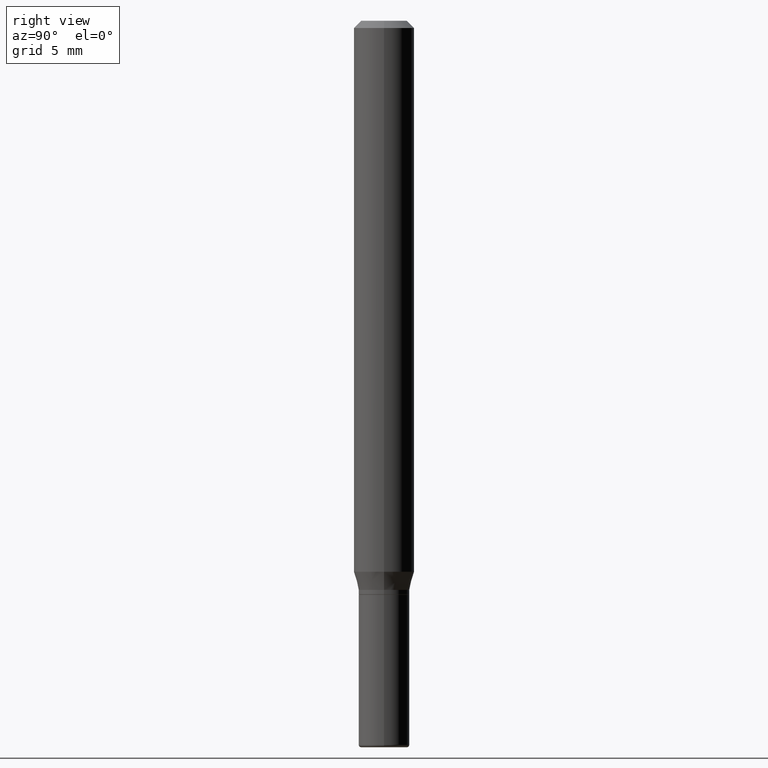
[diagram: clean part render]
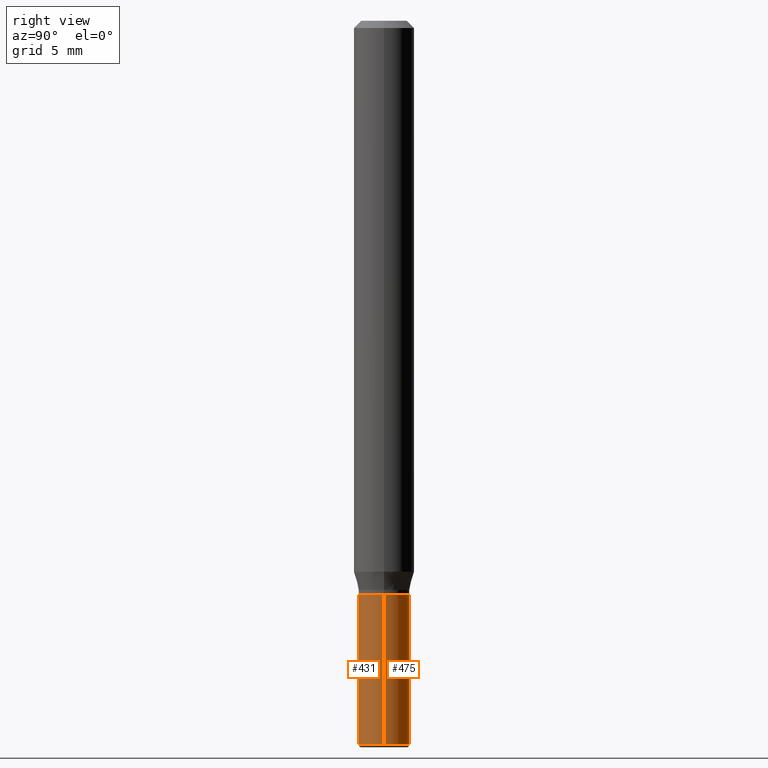
[diagram: same view with one multi-face feature highlighted, each face labeled with its STEP entity id]
A machine part, right view. The highlighted faces form ONE feature: a constant-radius fillet chain: 2 tangent blend faces with common blend radius 1.3335 mm. The faces share edges in the B-rep.
Their STEP definitions:
[1] entity #431 (Cylinder):
#2 = EDGE_LOOP ( 'NONE', ( #430, #240, #84, #311 ) ) ;
#15 = DIRECTION ( 'NONE',  ( -2.445468806185136877E-29, 3.491481338843145188E-15, 1.000000000000000000 ) ) ;
#18 = DIRECTION ( 'NONE',  ( -2.445468806185136877E-29, 3.491481338843145188E-15, 1.000000000000000000 ) ) ;
#21 = DIRECTION ( 'NONE',  ( -2.445468806185136597E-29, 3.491481338843145583E-15, 1.000000000000000000 ) ) ;
#34 = AXIS2_PLACEMENT_3D ( 'NONE', #250, #216, #174 ) ;
#42 = VERTEX_POINT ( 'NONE', #236 ) ;
#54 = CARTESIAN_POINT ( 'NONE',  ( 0.000000000000000000, 0.000000000000000000, 0.000000000000000000 ) ) ;
#84 = ORIENTED_EDGE ( 'NONE', *, *, #449, .T. ) ;
#93 = CARTESIAN_POINT ( 'NONE',  ( 0.05250000000000008826, -3.666055405785296038E-16, 2.559992807292870916E-30 ) ) ;
#143 = EDGE_CURVE ( 'NONE', #409, #310, #315, .T. ) ;
#174 = DIRECTION ( 'NONE',  ( 1.000000000000000000, -6.982962677686263555E-15, 0.000000000000000000 ) ) ;
#205 = EDGE_CURVE ( 'NONE', #352, #409, #215, .T. ) ;
#207 = LINE ( 'NONE', #93, #401 ) ;
#215 = LINE ( 'NONE', #368, #246 ) ;
#216 = DIRECTION ( 'NONE',  ( -2.445468806185136597E-29, 3.491481338843145583E-15, 1.000000000000000000 ) ) ;
#227 = CARTESIAN_POINT ( 'NONE',  ( -0.05250000000000017153, -4.305550057775760834E-15, -1.495000000000000107 ) ) ;
#236 = CARTESIAN_POINT ( 'NONE',  ( 0.05250000000000017153, -5.586370142149033090E-15, -1.495000000000000107 ) ) ;
#237 = CARTESIAN_POINT ( 'NONE',  ( -0.05249999999999999806, -4.305550057775762412E-15, -1.185000000000000053 ) ) ;
#240 = ORIENTED_EDGE ( 'NONE', *, *, #467, .T. ) ;
#246 = VECTOR ( 'NONE', #18, 39.37007874015748143 ) ;
#250 = CARTESIAN_POINT ( 'NONE',  ( 3.655975865246779122E-29, -5.219764601570503141E-15, -1.495000000000000107 ) ) ;
#278 = FACE_OUTER_BOUND ( 'NONE', #2, .T. ) ;
#283 = CARTESIAN_POINT ( 'NONE',  ( 0.05249999999999999806, -4.504010927107656701E-15, -1.185000000000000053 ) ) ;
#294 = CYLINDRICAL_SURFACE ( 'NONE', #494, 0.05250000000000008826 ) ;
#295 = DIRECTION ( 'NONE',  ( 1.000000000000000000, -6.982962677686258822E-15, 0.000000000000000000 ) ) ;
#299 = CIRCLE ( 'NONE', #34, 0.05250000000000017153 ) ;
#310 = VERTEX_POINT ( 'NONE', #283 ) ;
#311 = ORIENTED_EDGE ( 'NONE', *, *, #143, .F. ) ;
#315 = CIRCLE ( 'NONE', #417, 0.05249999999999999806 ) ;
#352 = VERTEX_POINT ( 'NONE', #227 ) ;
#368 = CARTESIAN_POINT ( 'NONE',  ( -0.05250000000000008826, 3.730349362740532247E-16, -2.582440922383829865E-30 ) ) ;
#370 = DIRECTION ( 'NONE',  ( -2.445468806185136597E-29, 3.491481338843145583E-15, 1.000000000000000000 ) ) ;
#401 = VECTOR ( 'NONE', #15, 39.37007874015748143 ) ;
#409 = VERTEX_POINT ( 'NONE', #237 ) ;
#417 = AXIS2_PLACEMENT_3D ( 'NONE', #450, #21, #295 ) ;
#430 = ORIENTED_EDGE ( 'NONE', *, *, #205, .F. ) ;
#431 = ADVANCED_FACE ( 'NONE', ( #278 ), #294, .T. ) ;
#445 = DIRECTION ( 'NONE',  ( 1.000000000000000000, -6.982962677686266711E-15, 4.876176775795936353E-29 ) ) ;
#449 = EDGE_CURVE ( 'NONE', #42, #310, #207, .T. ) ;
#450 = CARTESIAN_POINT ( 'NONE',  ( 2.897880535329386822E-29, -4.137405386529127541E-15, -1.185000000000000053 ) ) ;
#467 = EDGE_CURVE ( 'NONE', #352, #42, #299, .T. ) ;
#494 = AXIS2_PLACEMENT_3D ( 'NONE', #54, #370, #445 ) ;
[2] entity #475 (Cylinder):
#15 = DIRECTION ( 'NONE',  ( -2.445468806185136877E-29, 3.491481338843145188E-15, 1.000000000000000000 ) ) ;
#18 = DIRECTION ( 'NONE',  ( -2.445468806185136877E-29, 3.491481338843145188E-15, 1.000000000000000000 ) ) ;
#19 = DIRECTION ( 'NONE',  ( 1.000000000000000000, -6.982962677686258822E-15, 0.000000000000000000 ) ) ;
#22 = FACE_OUTER_BOUND ( 'NONE', #199, .T. ) ;
#42 = VERTEX_POINT ( 'NONE', #236 ) ;
#61 = DIRECTION ( 'NONE',  ( 1.000000000000000000, -6.982962677686266711E-15, 4.876176775795936353E-29 ) ) ;
#86 = EDGE_CURVE ( 'NONE', #42, #352, #371, .T. ) ;
#93 = CARTESIAN_POINT ( 'NONE',  ( 0.05250000000000008826, -3.666055405785296038E-16, 2.559992807292870916E-30 ) ) ;
#122 = ORIENTED_EDGE ( 'NONE', *, *, #482, .F. ) ;
#162 = AXIS2_PLACEMENT_3D ( 'NONE', #366, #362, #19 ) ;
#173 = CARTESIAN_POINT ( 'NONE',  ( 3.655975865246779122E-29, -5.219764601570503141E-15, -1.495000000000000107 ) ) ;
#180 = CYLINDRICAL_SURFACE ( 'NONE', #308, 0.05250000000000008826 ) ;
#199 = EDGE_LOOP ( 'NONE', ( #377, #502, #122, #488 ) ) ;
#205 = EDGE_CURVE ( 'NONE', #352, #409, #215, .T. ) ;
#207 = LINE ( 'NONE', #93, #401 ) ;
#214 = DIRECTION ( 'NONE',  ( -2.445468806185136597E-29, 3.491481338843145583E-15, 1.000000000000000000 ) ) ;
#215 = LINE ( 'NONE', #368, #246 ) ;
#218 = DIRECTION ( 'NONE',  ( 1.000000000000000000, -6.982962677686263555E-15, 0.000000000000000000 ) ) ;
#227 = CARTESIAN_POINT ( 'NONE',  ( -0.05250000000000017153, -4.305550057775760834E-15, -1.495000000000000107 ) ) ;
#236 = CARTESIAN_POINT ( 'NONE',  ( 0.05250000000000017153, -5.586370142149033090E-15, -1.495000000000000107 ) ) ;
#237 = CARTESIAN_POINT ( 'NONE',  ( -0.05249999999999999806, -4.305550057775762412E-15, -1.185000000000000053 ) ) ;
#246 = VECTOR ( 'NONE', #18, 39.37007874015748143 ) ;
#273 = AXIS2_PLACEMENT_3D ( 'NONE', #173, #293, #218 ) ;
#274 = CIRCLE ( 'NONE', #162, 0.05249999999999999806 ) ;
#283 = CARTESIAN_POINT ( 'NONE',  ( 0.05249999999999999806, -4.504010927107656701E-15, -1.185000000000000053 ) ) ;
#293 = DIRECTION ( 'NONE',  ( -2.445468806185136597E-29, 3.491481338843145583E-15, 1.000000000000000000 ) ) ;
#308 = AXIS2_PLACEMENT_3D ( 'NONE', #335, #214, #61 ) ;
#310 = VERTEX_POINT ( 'NONE', #283 ) ;
#335 = CARTESIAN_POINT ( 'NONE',  ( 0.000000000000000000, 0.000000000000000000, 0.000000000000000000 ) ) ;
#352 = VERTEX_POINT ( 'NONE', #227 ) ;
#362 = DIRECTION ( 'NONE',  ( -2.445468806185136597E-29, 3.491481338843145583E-15, 1.000000000000000000 ) ) ;
#366 = CARTESIAN_POINT ( 'NONE',  ( 2.897880535329386822E-29, -4.137405386529127541E-15, -1.185000000000000053 ) ) ;
#368 = CARTESIAN_POINT ( 'NONE',  ( -0.05250000000000008826, 3.730349362740532247E-16, -2.582440922383829865E-30 ) ) ;
#371 = CIRCLE ( 'NONE', #273, 0.05250000000000017153 ) ;
#377 = ORIENTED_EDGE ( 'NONE', *, *, #86, .T. ) ;
#401 = VECTOR ( 'NONE', #15, 39.37007874015748143 ) ;
#409 = VERTEX_POINT ( 'NONE', #237 ) ;
#449 = EDGE_CURVE ( 'NONE', #42, #310, #207, .T. ) ;
#475 = ADVANCED_FACE ( 'NONE', ( #22 ), #180, .T. ) ;
#482 = EDGE_CURVE ( 'NONE', #310, #409, #274, .T. ) ;
#488 = ORIENTED_EDGE ( 'NONE', *, *, #449, .F. ) ;
#502 = ORIENTED_EDGE ( 'NONE', *, *, #205, .T. ) ;